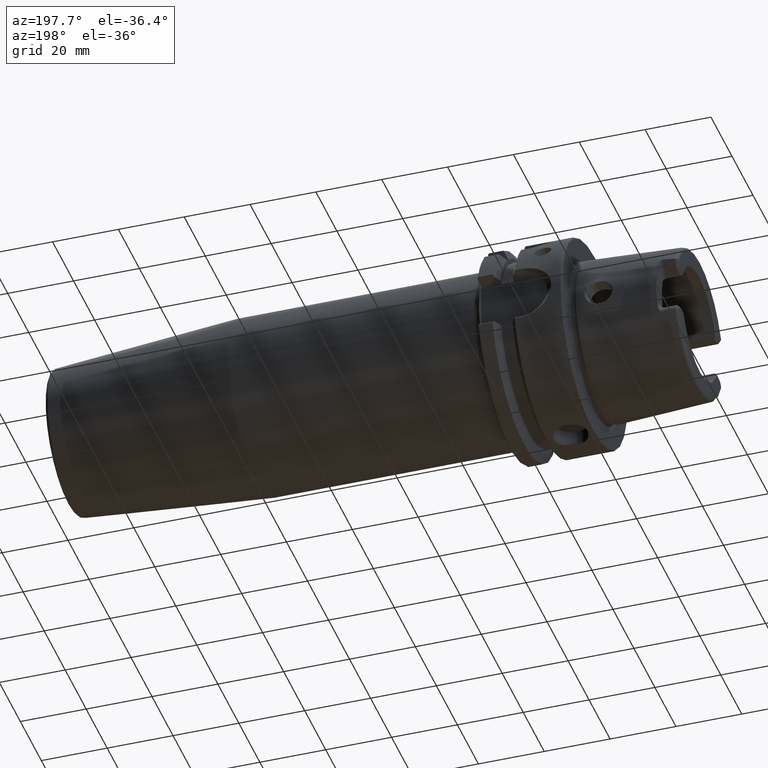
[diagram: clean part render]
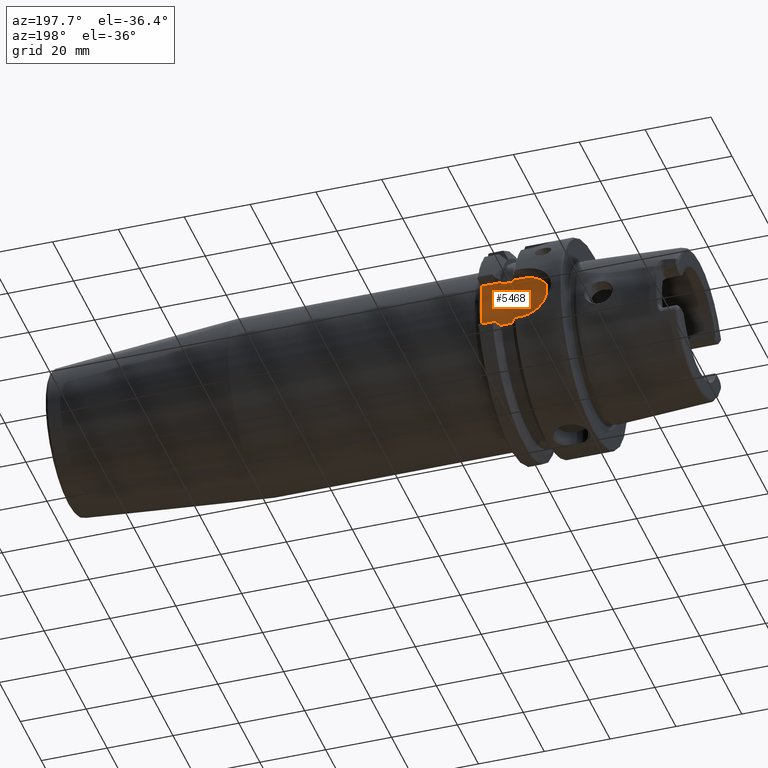
[diagram: same view with one face highlighted and labeled with its STEP entity id]
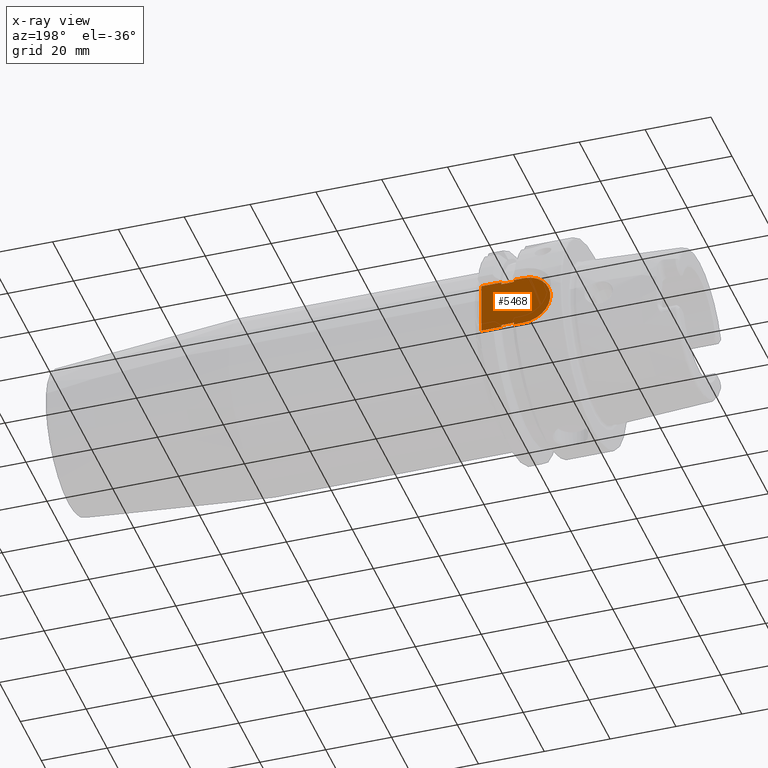
[diagram: x-ray of the same camera — body ghosted, the highlighted face saturated]
A machine part, auxiliary view. The second image highlights one B-rep face of the part: STEP entity #5468.
The next image is the same camera in x-ray: the body ghosted, the highlighted face saturated — about 0% of this face is hidden behind the body in this view.
In plain terms, the highlighted planar face has unit normal (0, -1, 0).
Its self-contained STEP definition (entity closure, byte-faithful):
#2025=DIRECTION('',(0.E0,0.E0,1.E0));
#2026=VECTOR('',#2025,6.515307716505E-1);
#2027=CARTESIAN_POINT('',(1.6125E1,2.65E1,-8.E0));
#2028=LINE('',#2027,#2026);
#2049=DIRECTION('',(0.E0,0.E0,1.E0));
#2050=VECTOR('',#2049,6.515307716505E-1);
#2051=CARTESIAN_POINT('',(1.6125E1,2.65E1,7.348469228350E0));
#2052=LINE('',#2051,#2050);
#2110=DIRECTION('',(0.E0,0.E0,1.E0));
#2111=VECTOR('',#2110,1.6E1);
#2112=CARTESIAN_POINT('',(2.6E1,2.65E1,-8.E0));
#2113=LINE('',#2112,#2111);
#2114=DIRECTION('',(-1.E0,0.E0,0.E0));
#2115=VECTOR('',#2114,6.125E0);
#2116=CARTESIAN_POINT('',(2.6E1,2.65E1,8.E0));
#2117=LINE('',#2116,#2115);
#2118=DIRECTION('',(-1.E0,0.E0,0.E0));
#2119=VECTOR('',#2118,3.125E0);
#2120=CARTESIAN_POINT('',(1.6125E1,2.65E1,8.E0));
#2121=LINE('',#2120,#2119);
#2122=CARTESIAN_POINT('',(1.3E1,2.65E1,0.E0));
#2123=DIRECTION('',(0.E0,-1.E0,0.E0));
#2124=DIRECTION('',(0.E0,0.E0,1.E0));
#2125=AXIS2_PLACEMENT_3D('',#2122,#2123,#2124);
#2127=DIRECTION('',(1.E0,0.E0,0.E0));
#2128=VECTOR('',#2127,3.125E0);
#2129=CARTESIAN_POINT('',(1.3E1,2.65E1,-8.E0));
#2130=LINE('',#2129,#2128);
#2131=DIRECTION('',(1.E0,0.E0,0.E0));
#2132=VECTOR('',#2131,6.125E0);
#2133=CARTESIAN_POINT('',(1.9875E1,2.65E1,-8.E0));
#2134=LINE('',#2133,#2132);
#2355=DIRECTION('',(0.E0,0.E0,1.E0));
#2356=VECTOR('',#2355,6.515307716505E-1);
#2357=CARTESIAN_POINT('',(1.9875E1,2.65E1,-8.E0));
#2358=LINE('',#2357,#2356);
#2371=DIRECTION('',(0.E0,0.E0,1.E0));
#2372=VECTOR('',#2371,6.515307716505E-1);
#2373=CARTESIAN_POINT('',(1.9875E1,2.65E1,7.348469228350E0));
#2374=LINE('',#2373,#2372);
#2392=DIRECTION('',(1.E0,0.E0,0.E0));
#2393=VECTOR('',#2392,3.75E0);
#2394=CARTESIAN_POINT('',(1.6125E1,2.65E1,7.348469228350E0));
#2395=LINE('',#2394,#2393);
#2410=DIRECTION('',(1.E0,0.E0,0.E0));
#2411=VECTOR('',#2410,3.75E0);
#2412=CARTESIAN_POINT('',(1.6125E1,2.65E1,-7.348469228350E0));
#2413=LINE('',#2412,#2411);
#2647=CARTESIAN_POINT('',(1.6125E1,2.65E1,-8.E0));
#2648=CARTESIAN_POINT('',(1.6125E1,2.65E1,-7.348469228350E0));
#2649=VERTEX_POINT('',#2647);
#2650=VERTEX_POINT('',#2648);
#2651=CARTESIAN_POINT('',(1.6125E1,2.65E1,7.348469228350E0));
#2652=CARTESIAN_POINT('',(1.6125E1,2.65E1,8.E0));
#2653=VERTEX_POINT('',#2651);
#2654=VERTEX_POINT('',#2652);
#2659=CARTESIAN_POINT('',(1.9875E1,2.65E1,-7.348469228350E0));
#2660=VERTEX_POINT('',#2659);
#2661=CARTESIAN_POINT('',(1.9875E1,2.65E1,7.348469228350E0));
#2662=VERTEX_POINT('',#2661);
#2663=CARTESIAN_POINT('',(1.9875E1,2.65E1,-8.E0));
#2664=VERTEX_POINT('',#2663);
#2665=CARTESIAN_POINT('',(1.9875E1,2.65E1,8.E0));
#2666=VERTEX_POINT('',#2665);
#2671=CARTESIAN_POINT('',(1.3E1,2.65E1,8.E0));
#2672=CARTESIAN_POINT('',(1.3E1,2.65E1,-8.E0));
#2673=VERTEX_POINT('',#2671);
#2674=VERTEX_POINT('',#2672);
#3044=CARTESIAN_POINT('',(2.6E1,2.65E1,-8.E0));
#3045=CARTESIAN_POINT('',(2.6E1,2.65E1,8.E0));
#3046=VERTEX_POINT('',#3044);
#3047=VERTEX_POINT('',#3045);
#5442=CARTESIAN_POINT('',(0.E0,2.65E1,0.E0));
#5443=DIRECTION('',(0.E0,-1.E0,0.E0));
#5444=DIRECTION('',(1.E0,0.E0,0.E0));
#5445=AXIS2_PLACEMENT_3D('',#5442,#5443,#5444);
#5446=PLANE('',#5445);
#5447=ORIENTED_EDGE('',*,*,#5407,.T.);
#5449=ORIENTED_EDGE('',*,*,#5448,.T.);
#5451=ORIENTED_EDGE('',*,*,#5450,.F.);
#5453=ORIENTED_EDGE('',*,*,#5452,.F.);
#5454=ORIENTED_EDGE('',*,*,#5356,.T.);
#5456=ORIENTED_EDGE('',*,*,#5455,.T.);
#5458=ORIENTED_EDGE('',*,*,#5457,.T.);
#5459=ORIENTED_EDGE('',*,*,#3871,.T.);
#5460=ORIENTED_EDGE('',*,*,#5337,.T.);
#5462=ORIENTED_EDGE('',*,*,#5461,.T.);
#5464=ORIENTED_EDGE('',*,*,#5463,.F.);
#5465=ORIENTED_EDGE('',*,*,#3883,.T.);
#5466=EDGE_LOOP('',(#5447,#5449,#5451,#5453,#5454,#5456,#5458,#5459,#5460,#5462,
#5464,#5465));
#5467=FACE_OUTER_BOUND('',#5466,.F.);
#5468=ADVANCED_FACE('',(#5467),#5446,.F.);
#2126=CIRCLE('',#2125,8.E0);
#3871=EDGE_CURVE('',#2674,#2649,#2130,.T.);
#3883=EDGE_CURVE('',#2664,#3046,#2134,.T.);
#5337=EDGE_CURVE('',#2649,#2650,#2028,.T.);
#5356=EDGE_CURVE('',#2653,#2654,#2052,.T.);
#5407=EDGE_CURVE('',#3046,#3047,#2113,.T.);
#5448=EDGE_CURVE('',#3047,#2666,#2117,.T.);
#5450=EDGE_CURVE('',#2662,#2666,#2374,.T.);
#5452=EDGE_CURVE('',#2653,#2662,#2395,.T.);
#5455=EDGE_CURVE('',#2654,#2673,#2121,.T.);
#5457=EDGE_CURVE('',#2673,#2674,#2126,.T.);
#5461=EDGE_CURVE('',#2650,#2660,#2413,.T.);
#5463=EDGE_CURVE('',#2664,#2660,#2358,.T.);